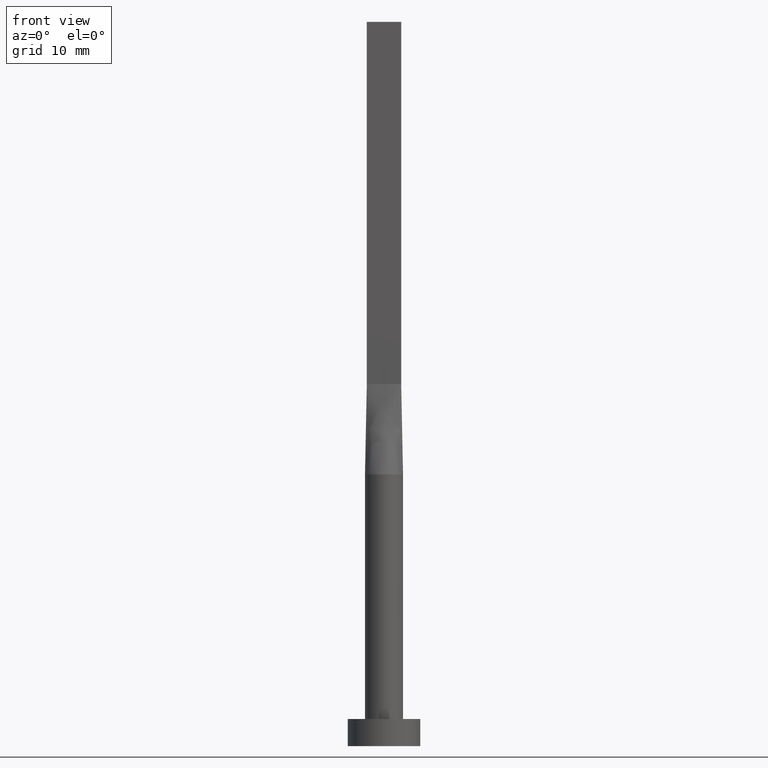
[diagram: clean part render]
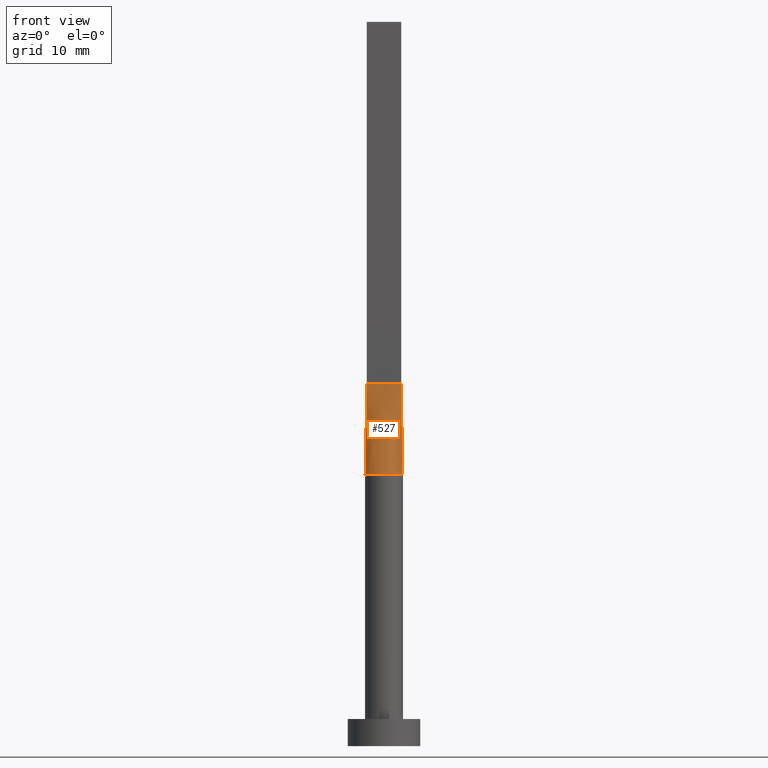
[diagram: same view with one face highlighted and labeled with its STEP entity id]
A machine part, front view. The second image highlights one B-rep face of the part: STEP entity #527.
In plain terms, the highlighted face is a freeform B-spline surface patch.
Its self-contained STEP definition (entity closure, byte-faithful):
#4 = CARTESIAN_POINT ( 'NONE',  ( 0.6333333333333355242, -0.3999999999999997446, 39.99999999999999289 ) ) ;
#8 = CARTESIAN_POINT ( 'NONE',  ( 1.069497409764670115, -1.827724181718573204, 30.00000000000001776 ) ) ;
#10 = CARTESIAN_POINT ( 'NONE',  ( 1.899999999999999023, -0.3999999999999998002, 40.00000000000000000 ) ) ;
#28 = ORIENTED_EDGE ( 'NONE', *, *, #122, .T. ) ;
#37 = ORIENTED_EDGE ( 'NONE', *, *, #366, .T. ) ;
#38 = CARTESIAN_POINT ( 'NONE',  ( -1.899999999999999911, -0.3999999999999995781, 40.00000000000000000 ) ) ;
#48 = CARTESIAN_POINT ( 'NONE',  ( -1.583333333333332149, -0.3999999999999995226, 39.99999999999999289 ) ) ;
#53 = CARTESIAN_POINT ( 'NONE',  ( -1.899999999999999911, -0.3999999999999995781, 40.00000000000000000 ) ) ;
#59 = CARTESIAN_POINT ( 'NONE',  ( -1.108333333333330950, -0.3999999999999995781, 39.99999999999999289 ) ) ;
#60 = CARTESIAN_POINT ( 'NONE',  ( -2.054954548472173403, -0.4326220102046674509, 30.00000000000000000 ) ) ;
#94 = CARTESIAN_POINT ( 'NONE',  ( -1.977477274236086657, -0.4163110051023335423, 35.00000000000000000 ) ) ;
#95 = CARTESIAN_POINT ( 'NONE',  ( -1.769939800381044481, -1.149026496286139176, 29.99999999999999645 ) ) ;
#98 = CARTESIAN_POINT ( 'NONE',  ( 1.638039177766651200, -1.336522195786985279, 30.00000000000001066 ) ) ;
#101 = CARTESIAN_POINT ( 'NONE',  ( -0.6333333333333305282, -0.3999999999999996336, 39.99999999999999289 ) ) ;
#108 = CARTESIAN_POINT ( 'NONE',  ( -2.019676033883314403, -0.6001949545017496446, 30.00000000000000355 ) ) ;
#115 = DIRECTION ( 'NONE',  ( 0.000000000000000000, 0.000000000000000000, 1.000000000000000000 ) ) ;
#122 = EDGE_CURVE ( 'NONE', #473, #501, #564, .T. ) ;
#146 = EDGE_CURVE ( 'NONE', #501, #206, #395, .T. ) ;
#148 = CARTESIAN_POINT ( 'NONE',  ( 2.054954548472172959, -0.4326220102046682281, 30.00000000000000000 ) ) ;
#165 = EDGE_LOOP ( 'NONE', ( #28, #484, #558, #37 ) ) ;
#191 = CARTESIAN_POINT ( 'NONE',  ( 1.288188016604683739, -1.676316068528189263, 30.00000000000001421 ) ) ;
#194 = CARTESIAN_POINT ( 'NONE',  ( 0.1583333333333359905, -0.3999999999999996336, 39.99999999999999289 ) ) ;
#200 = CARTESIAN_POINT ( 'NONE',  ( -1.069497409764672113, -1.827724181718571650, 30.00000000000000711 ) ) ;
#203 = CARTESIAN_POINT ( 'NONE',  ( -1.638039177766652310, -1.336522195786983724, 30.00000000000000355 ) ) ;
#206 = VERTEX_POINT ( 'NONE', #453 ) ;
#224 = LINE ( 'NONE', #38, #419 ) ;
#227 = B_SPLINE_SURFACE_WITH_KNOTS ( 'NONE', 3, 1, ( 
 ( #60, #283 ),
 ( #108, #290 ),
 ( #243, #48 ),
 ( #95, #550 ),
 ( #203, #59 ),
 ( #247, #548 ),
 ( #200, #101 ),
 ( #281, #286 ),
 ( #239, #374 ),
 ( #377, #194 ),
 ( #418, #367 ),
 ( #8, #4 ),
 ( #191, #326 ),
 ( #98, #510 ),
 ( #468, #414 ),
 ( #417, #369 ),
 ( #245, #420 ),
 ( #148, #10 ) ),
 .UNSPECIFIED., .F., .F., .F.,
 ( 4, 2, 2, 2, 2, 2, 2, 2, 4 ),
 ( 2, 2 ),
 ( 0.000000000000000000, 0.1250000000000000833, 0.2500000000000001110, 0.3750000000000001110, 0.5000000000000001110, 0.6250000000000001110, 0.7500000000000000000, 0.8750000000000000000, 1.000000000000000000 ),
 ( 0.000000000000000000, 1.000000000000000000 ),
 .UNSPECIFIED. ) ;
#239 = CARTESIAN_POINT ( 'NONE',  ( -0.2839879338753514282, -2.100000000000000533, 30.00000000000000711 ) ) ;
#240 = DIRECTION ( 'NONE',  ( -0.01549351246150990416, -0.003261792097159956199, -0.9998746480354023802 ) ) ;
#243 = CARTESIAN_POINT ( 'NONE',  ( -1.960396204527856456, -0.7808940436533431395, 30.00000000000000000 ) ) ;
#245 = CARTESIAN_POINT ( 'NONE',  ( 2.019676033883313071, -0.6001949545017514209, 30.00000000000000000 ) ) ;
#247 = CARTESIAN_POINT ( 'NONE',  ( -1.288188016604684627, -1.676316068528187930, 30.00000000000001066 ) ) ;
#254 = CARTESIAN_POINT ( 'NONE',  ( 1.977477274236086213, -0.4163110051023340419, 35.00000000000000000 ) ) ;
#281 = CARTESIAN_POINT ( 'NONE',  ( -0.5670887265440306413, -2.040296735810464668, 30.00000000000001066 ) ) ;
#283 = CARTESIAN_POINT ( 'NONE',  ( -1.899999999999999911, -0.3999999999999995781, 40.00000000000000000 ) ) ;
#286 = CARTESIAN_POINT ( 'NONE',  ( -0.3166666666666637653, -0.3999999999999996336, 39.99999999999999289 ) ) ;
#288 = EDGE_CURVE ( 'NONE', #370, #206, #224, .T. ) ;
#290 = CARTESIAN_POINT ( 'NONE',  ( -1.741666666666666030, -0.3999999999999995226, 39.99999999999999289 ) ) ;
#326 = CARTESIAN_POINT ( 'NONE',  ( 0.7916666666666686281, -0.3999999999999997446, 39.99999999999999289 ) ) ;
#340 = DIRECTION ( 'NONE',  ( -0.01549351246150994753, 0.003261792097160015180, 0.9998746480354023802 ) ) ;
#345 = AXIS2_PLACEMENT_3D ( 'NONE', #385, #115, #528 ) ;
#355 = VECTOR ( 'NONE', #240, 1000.000000000000227 ) ;
#366 = EDGE_CURVE ( 'NONE', #370, #473, #368, .T. ) ;
#367 = CARTESIAN_POINT ( 'NONE',  ( 0.3166666666666693164, -0.3999999999999996891, 39.99999999999999289 ) ) ;
#368 = LINE ( 'NONE', #94, #355 ) ;
#369 = CARTESIAN_POINT ( 'NONE',  ( 1.583333333333333259, -0.3999999999999997446, 39.99999999999999289 ) ) ;
#370 = VERTEX_POINT ( 'NONE', #53 ) ;
#374 = CARTESIAN_POINT ( 'NONE',  ( -0.1583333333333305781, -0.3999999999999996336, 39.99999999999999289 ) ) ;
#377 = CARTESIAN_POINT ( 'NONE',  ( 0.2839879338753495963, -2.100000000000000533, 30.00000000000001066 ) ) ;
#385 = CARTESIAN_POINT ( 'NONE',  ( 0.000000000000000000, 0.000000000000000000, 30.00000000000000000 ) ) ;
#395 = LINE ( 'NONE', #254, #432 ) ;
#401 = DIRECTION ( 'NONE',  ( 1.000000000000000000, -5.706327223607918787E-17, 0.000000000000000000 ) ) ;
#414 = CARTESIAN_POINT ( 'NONE',  ( 1.266666666666667496, -0.3999999999999997446, 39.99999999999999289 ) ) ;
#417 = CARTESIAN_POINT ( 'NONE',  ( 1.960396204527856234, -0.7808940436533445828, 30.00000000000000000 ) ) ;
#418 = CARTESIAN_POINT ( 'NONE',  ( 0.5670887265440289760, -2.040296735810464668, 30.00000000000000711 ) ) ;
#419 = VECTOR ( 'NONE', #401, 1000.000000000000000 ) ;
#420 = CARTESIAN_POINT ( 'NONE',  ( 1.741666666666666030, -0.3999999999999997446, 39.99999999999999289 ) ) ;
#423 = FACE_OUTER_BOUND ( 'NONE', #165, .T. ) ;
#432 = VECTOR ( 'NONE', #340, 1000.000000000000227 ) ;
#453 = CARTESIAN_POINT ( 'NONE',  ( 1.899999999999999023, -0.3999999999999998002, 40.00000000000000000 ) ) ;
#468 = CARTESIAN_POINT ( 'NONE',  ( 1.769939800381043815, -1.149026496286140731, 30.00000000000000000 ) ) ;
#473 = VERTEX_POINT ( 'NONE', #554 ) ;
#484 = ORIENTED_EDGE ( 'NONE', *, *, #146, .T. ) ;
#501 = VERTEX_POINT ( 'NONE', #513 ) ;
#510 = CARTESIAN_POINT ( 'NONE',  ( 1.108333333333334503, -0.3999999999999997446, 39.99999999999999289 ) ) ;
#513 = CARTESIAN_POINT ( 'NONE',  ( 2.055161022591414977, -0.4326655822303633325, 30.00000000000000000 ) ) ;
#527 = ADVANCED_FACE ( 'NONE', ( #423 ), #227, .T. ) ;
#528 = DIRECTION ( 'NONE',  ( 1.000000000000000000, 0.000000000000000000, 0.000000000000000000 ) ) ;
#548 = CARTESIAN_POINT ( 'NONE',  ( -0.7916666666666639651, -0.3999999999999996336, 39.99999999999999289 ) ) ;
#550 = CARTESIAN_POINT ( 'NONE',  ( -1.266666666666664609, -0.3999999999999995226, 39.99999999999999289 ) ) ;
#554 = CARTESIAN_POINT ( 'NONE',  ( -2.055145036631130129, -0.4326623253166036465, 30.00000000000000000 ) ) ;
#558 = ORIENTED_EDGE ( 'NONE', *, *, #288, .F. ) ;
#564 = CIRCLE ( 'NONE', #345, 2.100000000000000089 ) ;